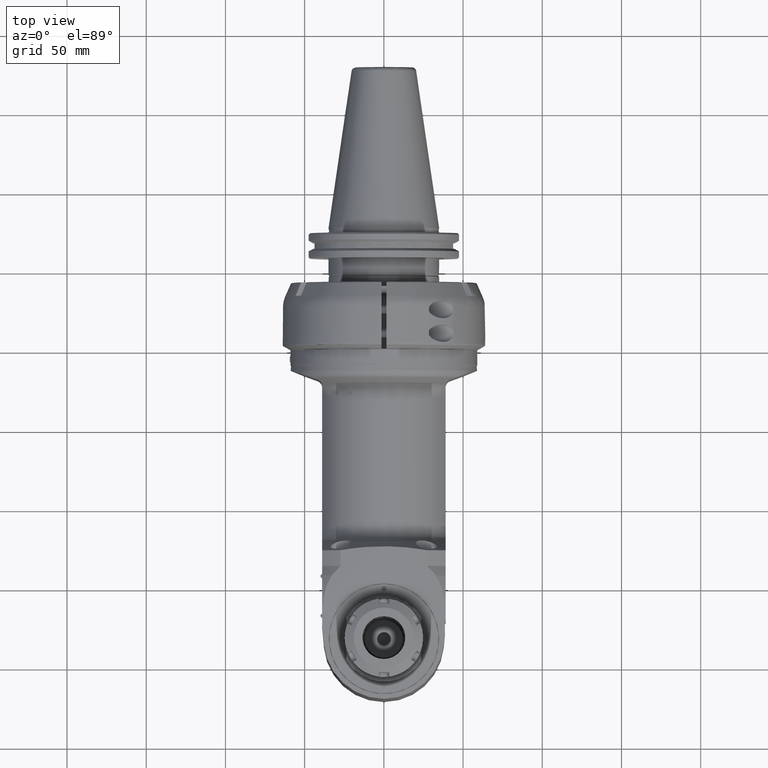
[diagram: clean part render]
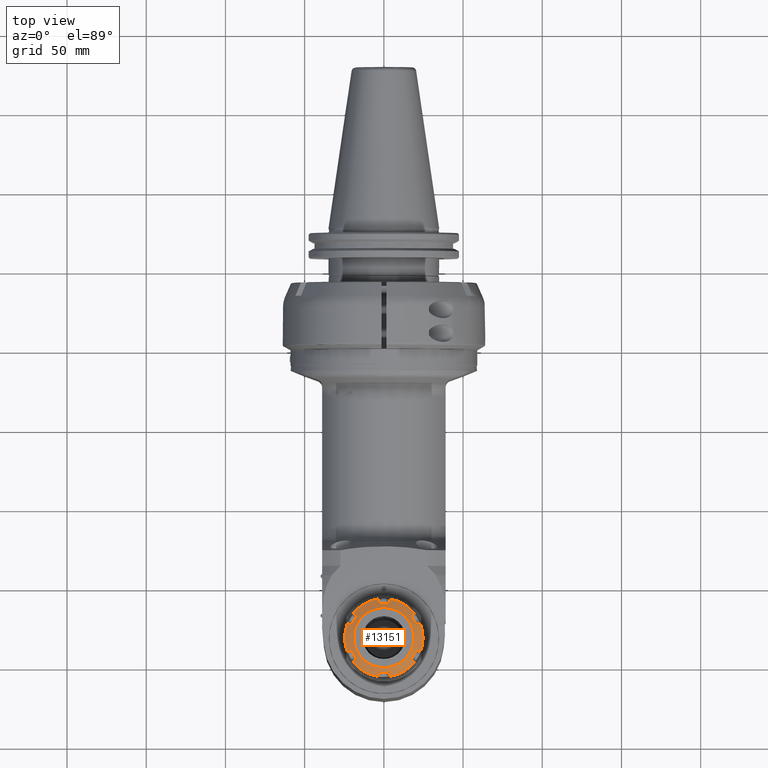
[diagram: same view with one face highlighted and labeled with its STEP entity id]
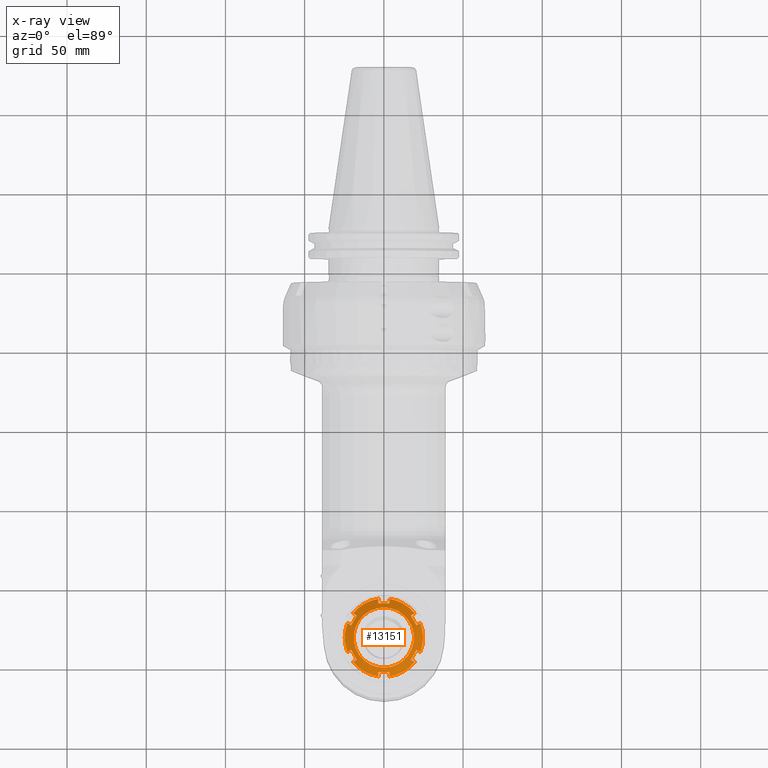
[diagram: x-ray of the same camera — body ghosted, the highlighted face saturated]
A machine part, top view. The second image highlights one B-rep face of the part: STEP entity #13151.
The next image is the same camera in x-ray: the body ghosted, the highlighted face saturated — about 0% of this face is hidden behind the body in this view.
In plain terms, the highlighted conical surface has half-angle 60 deg.
Its self-contained STEP definition (entity closure, byte-faithful):
#228=CONICAL_SURFACE('',#14515,21.875,1.0471975511966);
#384=B_SPLINE_CURVE_WITH_KNOTS('',3,(#37006,#37007,#37008,#37009,#37010,
#37011),.UNSPECIFIED.,.F.,.F.,(4,2,4),(1.75304230419575E-6,0.179968194076602,
0.354706484196522),.UNSPECIFIED.);
#385=B_SPLINE_CURVE_WITH_KNOTS('',3,(#37013,#37014,#37015,#37016,#37017,
#37018),.UNSPECIFIED.,.F.,.F.,(4,2,4),(6.56432378893916E-6,0.158648987542405,
0.312349172430563),.UNSPECIFIED.);
#386=B_SPLINE_CURVE_WITH_KNOTS('',3,(#37030,#37031,#37032,#37033,#37034,
#37035),.UNSPECIFIED.,.F.,.F.,(4,2,4),(9.99999986067701E-7,0.1535487467006,
0.311883061140396),.UNSPECIFIED.);
#387=B_SPLINE_CURVE_WITH_KNOTS('',3,(#37037,#37038,#37039,#37040,#37041,
#37042,#37043,#37044),.UNSPECIFIED.,.F.,.F.,(4,2,2,4),(3.04413971080063E-6,
0.177048071462342,0.35329198125469,0.710275238795647),.UNSPECIFIED.);
#388=B_SPLINE_CURVE_WITH_KNOTS('',3,(#37046,#37047,#37048,#37049,#37050,
#37051),.UNSPECIFIED.,.F.,.F.,(4,2,4),(1.32933218869019E-6,0.158570358987506,
0.312342940626772),.UNSPECIFIED.);
#389=B_SPLINE_CURVE_WITH_KNOTS('',3,(#37063,#37064,#37065,#37066,#37067,
#37068),.UNSPECIFIED.,.F.,.F.,(4,2,4),(9.99999986206479E-7,0.153549233262958,
0.311884353579541),.UNSPECIFIED.);
#390=B_SPLINE_CURVE_WITH_KNOTS('',3,(#37070,#37071,#37072,#37073,#37074,
#37075,#37076,#37077,#37078,#37079),.UNSPECIFIED.,.F.,.F.,(4,2,2,2,4),(3.43894632933887E-6,
0.179256796815054,0.356213165144681,0.532342527782328,0.709279107887618),
 .UNSPECIFIED.);
#391=B_SPLINE_CURVE_WITH_KNOTS('',3,(#37081,#37082,#37083,#37084,#37085,
#37086),.UNSPECIFIED.,.F.,.F.,(4,2,4),(2.07933949775423E-6,0.158569247520242,
0.312342359699281),.UNSPECIFIED.);
#392=B_SPLINE_CURVE_WITH_KNOTS('',3,(#37098,#37099,#37100,#37101,#37102,
#37103),.UNSPECIFIED.,.F.,.F.,(4,2,4),(9.99999984601344E-7,0.153549312796786,
0.31187905688944),.UNSPECIFIED.);
#393=B_SPLINE_CURVE_WITH_KNOTS('',3,(#37105,#37106,#37107,#37108,#37109,
#37110),.UNSPECIFIED.,.F.,.F.,(4,2,4),(4.04179745230355E-6,0.174719437591081,
0.354667402329426),.UNSPECIFIED.);
#394=B_SPLINE_CURVE_WITH_KNOTS('',3,(#37112,#37113,#37114,#37115,#37116,
#37117),.UNSPECIFIED.,.F.,.F.,(4,2,4),(4.05758477388635E-6,0.179970500306999,
0.354708815402636),.UNSPECIFIED.);
#395=B_SPLINE_CURVE_WITH_KNOTS('',3,(#37119,#37120,#37121,#37122,#37123,
#37124),.UNSPECIFIED.,.F.,.F.,(4,2,4),(6.56392163599752E-6,0.158569666217397,
0.312342838283375),.UNSPECIFIED.);
#396=B_SPLINE_CURVE_WITH_KNOTS('',3,(#37136,#37137,#37138,#37139,#37140,
#37141),.UNSPECIFIED.,.F.,.F.,(4,2,4),(9.99999986345257E-7,0.153548746700749,
0.311883061140589),.UNSPECIFIED.);
#397=B_SPLINE_CURVE_WITH_KNOTS('',3,(#37143,#37144,#37145,#37146,#37147,
#37148,#37149,#37150),.UNSPECIFIED.,.F.,.F.,(4,2,2,4),(3.04413971070964E-6,
0.177048071462304,0.353291981254645,0.710275238795632),.UNSPECIFIED.);
#398=B_SPLINE_CURVE_WITH_KNOTS('',3,(#37152,#37153,#37154,#37155,#37156,
#37157),.UNSPECIFIED.,.F.,.F.,(4,2,4),(1.32933218994347E-6,0.158569850560989,
0.31234294062439),.UNSPECIFIED.);
#399=B_SPLINE_CURVE_WITH_KNOTS('',3,(#37169,#37170,#37171,#37172,#37173,
#37174),.UNSPECIFIED.,.F.,.F.,(4,2,4),(9.99999985170407E-7,0.153549233262018,
0.311884353580751),.UNSPECIFIED.);
#400=B_SPLINE_CURVE_WITH_KNOTS('',3,(#37176,#37177,#37178,#37179,#37180,
#37181,#37182,#37183,#37184,#37185),.UNSPECIFIED.,.F.,.F.,(4,2,2,2,4),(3.43894633169504E-6,
0.179256796611397,0.356213164740627,0.532342526631423,0.709279115439129),
 .UNSPECIFIED.);
#401=B_SPLINE_CURVE_WITH_KNOTS('',3,(#37187,#37188,#37189,#37190,#37191,
#37192),.UNSPECIFIED.,.F.,.F.,(4,2,4),(2.0750582812829E-6,0.158542178985538,
0.312340212838862),.UNSPECIFIED.);
#402=B_SPLINE_CURVE_WITH_KNOTS('',3,(#37204,#37205,#37206,#37207,#37208,
#37209),.UNSPECIFIED.,.F.,.F.,(4,2,4),(9.9999998651179E-7,0.153548805156028,
0.311879056910371),.UNSPECIFIED.);
#403=B_SPLINE_CURVE_WITH_KNOTS('',3,(#37210,#37211,#37212,#37213,#37214,
#37215),.UNSPECIFIED.,.F.,.F.,(4,2,4),(4.04179743802855E-6,0.174719437591132,
0.354667406468795),.UNSPECIFIED.);
#1274=CIRCLE('',#14514,19.);
#1275=CIRCLE('',#14516,24.75);
#1276=CIRCLE('',#14517,24.75);
#1277=CIRCLE('',#14518,24.75);
#1278=CIRCLE('',#14519,24.75);
#1279=CIRCLE('',#14520,24.75);
#1280=CIRCLE('',#14521,24.75);
#1895=FACE_OUTER_BOUND('',#2666,.T.);
#2666=EDGE_LOOP('',(#11492,#11493,#11494,#11495,#11496,#11497,#11498,#11499,
#11500,#11501,#11502,#11503,#11504,#11505,#11506,#11507,#11508,#11509,#11510,
#11511,#11512,#11513,#11514,#11515,#11516,#11517,#11518,#11519,#11520,#11521,
#11522,#11523,#11524,#11525,#11526,#11527,#11528,#11529,#11530,#11531,#11532));
#2920=(
BOUNDED_CURVE()
B_SPLINE_CURVE(2,(#37020,#37021,#37022),.UNSPECIFIED.,.F.,.F.)
B_SPLINE_CURVE_WITH_KNOTS((3,3),(1.82066009604874,1.82654082051238),
 .UNSPECIFIED.)
CURVE()
GEOMETRIC_REPRESENTATION_ITEM()
RATIONAL_B_SPLINE_CURVE((1.10513378565991,1.10514190562322,1.105148981194))
REPRESENTATION_ITEM('')
);
#2921=(
BOUNDED_CURVE()
B_SPLINE_CURVE(2,(#37026,#37027,#37028),.UNSPECIFIED.,.F.,.F.)
B_SPLINE_CURVE_WITH_KNOTS((3,3),(1.90622250387371,1.91210328641764),
 .UNSPECIFIED.)
CURVE()
GEOMETRIC_REPRESENTATION_ITEM()
RATIONAL_B_SPLINE_CURVE((1.10514898079948,1.10514190515945,1.10513378510626))
REPRESENTATION_ITEM('')
);
#2922=(
BOUNDED_CURVE()
B_SPLINE_CURVE(2,(#37053,#37054,#37055),.UNSPECIFIED.,.F.,.F.)
B_SPLINE_CURVE_WITH_KNOTS((3,3),(1.82066003554749,1.82654081595317),
 .UNSPECIFIED.)
CURVE()
GEOMETRIC_REPRESENTATION_ITEM()
RATIONAL_B_SPLINE_CURVE((1.10513378467657,1.10514190472574,1.1051489803625))
REPRESENTATION_ITEM('')
);
#2923=(
BOUNDED_CURVE()
B_SPLINE_CURVE(2,(#37059,#37060,#37061),.UNSPECIFIED.,.F.,.F.)
B_SPLINE_CURVE_WITH_KNOTS((3,3),(1.90622249082827,1.91210327336149),
 .UNSPECIFIED.)
CURVE()
GEOMETRIC_REPRESENTATION_ITEM()
RATIONAL_B_SPLINE_CURVE((1.10514898025347,1.10514190461433,1.10513378456202))
REPRESENTATION_ITEM('')
);
#2924=(
BOUNDED_CURVE()
B_SPLINE_CURVE(2,(#37088,#37089,#37090),.UNSPECIFIED.,.F.,.F.)
B_SPLINE_CURVE_WITH_KNOTS((3,3),(1.82066003857852,1.82654081899518),
 .UNSPECIFIED.)
CURVE()
GEOMETRIC_REPRESENTATION_ITEM()
RATIONAL_B_SPLINE_CURVE((1.10513378522962,1.10514190527968,1.10514898091734))
REPRESENTATION_ITEM('')
);
#2925=(
BOUNDED_CURVE()
B_SPLINE_CURVE(2,(#37094,#37095,#37096),.UNSPECIFIED.,.F.,.F.)
B_SPLINE_CURVE_WITH_KNOTS((3,3),(1.90622251223776,1.91210329478919),
 .UNSPECIFIED.)
CURVE()
GEOMETRIC_REPRESENTATION_ITEM()
RATIONAL_B_SPLINE_CURVE((1.10514898114973,1.10514190550913,1.10513378545537))
REPRESENTATION_ITEM('')
);
#2926=(
BOUNDED_CURVE()
B_SPLINE_CURVE(2,(#37126,#37127,#37128),.UNSPECIFIED.,.F.,.F.)
B_SPLINE_CURVE_WITH_KNOTS((3,3),(-1.91210329372041,-1.90622251329742),
 .UNSPECIFIED.)
CURVE()
GEOMETRIC_REPRESENTATION_ITEM()
RATIONAL_B_SPLINE_CURVE((1.10513378550538,1.10514190555589,1.105148981194))
REPRESENTATION_ITEM('')
);
#2927=(
BOUNDED_CURVE()
B_SPLINE_CURVE(2,(#37132,#37133,#37134),.UNSPECIFIED.,.F.,.F.)
B_SPLINE_CURVE_WITH_KNOTS((3,3),(1.90622250387371,1.91210328641764),
 .UNSPECIFIED.)
CURVE()
GEOMETRIC_REPRESENTATION_ITEM()
RATIONAL_B_SPLINE_CURVE((1.10514898079948,1.10514190515945,1.10513378510626))
REPRESENTATION_ITEM('')
);
#2928=(
BOUNDED_CURVE()
B_SPLINE_CURVE(2,(#37159,#37160,#37161),.UNSPECIFIED.,.F.,.F.)
B_SPLINE_CURVE_WITH_KNOTS((3,3),(1.82066003554749,1.82654081595317),
 .UNSPECIFIED.)
CURVE()
GEOMETRIC_REPRESENTATION_ITEM()
RATIONAL_B_SPLINE_CURVE((1.10513378467657,1.10514190472574,1.1051489803625))
REPRESENTATION_ITEM('')
);
#2929=(
BOUNDED_CURVE()
B_SPLINE_CURVE(2,(#37165,#37166,#37167),.UNSPECIFIED.,.F.,.F.)
B_SPLINE_CURVE_WITH_KNOTS((3,3),(1.90622249082827,1.91210327336149),
 .UNSPECIFIED.)
CURVE()
GEOMETRIC_REPRESENTATION_ITEM()
RATIONAL_B_SPLINE_CURVE((1.10514898025347,1.10514190461433,1.10513378456202))
REPRESENTATION_ITEM('')
);
#2930=(
BOUNDED_CURVE()
B_SPLINE_CURVE(2,(#37194,#37195,#37196),.UNSPECIFIED.,.F.,.F.)
B_SPLINE_CURVE_WITH_KNOTS((3,3),(1.82066001950797,1.82654081899518),
 .UNSPECIFIED.)
CURVE()
GEOMETRIC_REPRESENTATION_ITEM()
RATIONAL_B_SPLINE_CURVE((1.10513378517696,1.10514190525674,1.10514898091734))
REPRESENTATION_ITEM('')
);
#2931=(
BOUNDED_CURVE()
B_SPLINE_CURVE(2,(#37200,#37201,#37202),.UNSPECIFIED.,.F.,.F.)
B_SPLINE_CURVE_WITH_KNOTS((3,3),(1.90622251223776,1.91210329478918),
 .UNSPECIFIED.)
CURVE()
GEOMETRIC_REPRESENTATION_ITEM()
RATIONAL_B_SPLINE_CURVE((1.10514898114973,1.10514190550913,1.10513378545537))
REPRESENTATION_ITEM('')
);
#3808=LINE('',#37216,#4755);
#4755=VECTOR('',#17716,21.875);
#6041=VERTEX_POINT('',#37001);
#6042=VERTEX_POINT('',#37004);
#6043=VERTEX_POINT('',#37005);
#6044=VERTEX_POINT('',#37012);
#6045=VERTEX_POINT('',#37019);
#6046=VERTEX_POINT('',#37023);
#6047=VERTEX_POINT('',#37025);
#6048=VERTEX_POINT('',#37029);
#6049=VERTEX_POINT('',#37036);
#6050=VERTEX_POINT('',#37045);
#6051=VERTEX_POINT('',#37052);
#6052=VERTEX_POINT('',#37056);
#6053=VERTEX_POINT('',#37058);
#6054=VERTEX_POINT('',#37062);
#6055=VERTEX_POINT('',#37069);
#6056=VERTEX_POINT('',#37080);
#6057=VERTEX_POINT('',#37087);
#6058=VERTEX_POINT('',#37091);
#6059=VERTEX_POINT('',#37093);
#6060=VERTEX_POINT('',#37097);
#6061=VERTEX_POINT('',#37104);
#6062=VERTEX_POINT('',#37111);
#6063=VERTEX_POINT('',#37118);
#6064=VERTEX_POINT('',#37125);
#6065=VERTEX_POINT('',#37129);
#6066=VERTEX_POINT('',#37131);
#6067=VERTEX_POINT('',#37135);
#6068=VERTEX_POINT('',#37142);
#6069=VERTEX_POINT('',#37151);
#6070=VERTEX_POINT('',#37158);
#6071=VERTEX_POINT('',#37162);
#6072=VERTEX_POINT('',#37164);
#6073=VERTEX_POINT('',#37168);
#6074=VERTEX_POINT('',#37175);
#6075=VERTEX_POINT('',#37186);
#6076=VERTEX_POINT('',#37193);
#6077=VERTEX_POINT('',#37197);
#6078=VERTEX_POINT('',#37199);
#6079=VERTEX_POINT('',#37203);
#7877=EDGE_CURVE('',#6041,#6041,#1274,.T.);
#7878=EDGE_CURVE('',#6042,#6043,#384,.T.);
#7879=EDGE_CURVE('',#6043,#6044,#385,.T.);
#7880=EDGE_CURVE('',#6044,#6045,#2920,.T.);
#7881=EDGE_CURVE('',#6045,#6046,#1275,.T.);
#7882=EDGE_CURVE('',#6046,#6047,#2921,.T.);
#7883=EDGE_CURVE('',#6047,#6048,#386,.T.);
#7884=EDGE_CURVE('',#6048,#6049,#387,.T.);
#7885=EDGE_CURVE('',#6049,#6050,#388,.T.);
#7886=EDGE_CURVE('',#6050,#6051,#2922,.T.);
#7887=EDGE_CURVE('',#6051,#6052,#1276,.T.);
#7888=EDGE_CURVE('',#6052,#6053,#2923,.T.);
#7889=EDGE_CURVE('',#6053,#6054,#389,.T.);
#7890=EDGE_CURVE('',#6054,#6055,#390,.T.);
#7891=EDGE_CURVE('',#6055,#6056,#391,.T.);
#7892=EDGE_CURVE('',#6056,#6057,#2924,.T.);
#7893=EDGE_CURVE('',#6057,#6058,#1277,.T.);
#7894=EDGE_CURVE('',#6058,#6059,#2925,.T.);
#7895=EDGE_CURVE('',#6059,#6060,#392,.T.);
#7896=EDGE_CURVE('',#6060,#6061,#393,.T.);
#7897=EDGE_CURVE('',#6061,#6062,#394,.T.);
#7898=EDGE_CURVE('',#6062,#6063,#395,.T.);
#7899=EDGE_CURVE('',#6063,#6064,#2926,.T.);
#7900=EDGE_CURVE('',#6065,#6064,#1278,.T.);
#7901=EDGE_CURVE('',#6065,#6066,#2927,.T.);
#7902=EDGE_CURVE('',#6066,#6067,#396,.T.);
#7903=EDGE_CURVE('',#6067,#6068,#397,.T.);
#7904=EDGE_CURVE('',#6068,#6069,#398,.T.);
#7905=EDGE_CURVE('',#6069,#6070,#2928,.T.);
#7906=EDGE_CURVE('',#6071,#6070,#1279,.T.);
#7907=EDGE_CURVE('',#6071,#6072,#2929,.T.);
#7908=EDGE_CURVE('',#6072,#6073,#399,.T.);
#7909=EDGE_CURVE('',#6073,#6074,#400,.T.);
#7910=EDGE_CURVE('',#6074,#6075,#401,.T.);
#7911=EDGE_CURVE('',#6075,#6076,#2930,.T.);
#7912=EDGE_CURVE('',#6077,#6076,#1280,.T.);
#7913=EDGE_CURVE('',#6077,#6078,#2931,.T.);
#7914=EDGE_CURVE('',#6078,#6079,#402,.T.);
#7915=EDGE_CURVE('',#6079,#6042,#403,.T.);
#7916=EDGE_CURVE('',#6042,#6041,#3808,.T.);
#11492=ORIENTED_EDGE('',*,*,#7878,.T.);
#11493=ORIENTED_EDGE('',*,*,#7879,.T.);
#11494=ORIENTED_EDGE('',*,*,#7880,.T.);
#11495=ORIENTED_EDGE('',*,*,#7881,.T.);
#11496=ORIENTED_EDGE('',*,*,#7882,.T.);
#11497=ORIENTED_EDGE('',*,*,#7883,.T.);
#11498=ORIENTED_EDGE('',*,*,#7884,.T.);
#11499=ORIENTED_EDGE('',*,*,#7885,.T.);
#11500=ORIENTED_EDGE('',*,*,#7886,.T.);
#11501=ORIENTED_EDGE('',*,*,#7887,.T.);
#11502=ORIENTED_EDGE('',*,*,#7888,.T.);
#11503=ORIENTED_EDGE('',*,*,#7889,.T.);
#11504=ORIENTED_EDGE('',*,*,#7890,.T.);
#11505=ORIENTED_EDGE('',*,*,#7891,.T.);
#11506=ORIENTED_EDGE('',*,*,#7892,.T.);
#11507=ORIENTED_EDGE('',*,*,#7893,.T.);
#11508=ORIENTED_EDGE('',*,*,#7894,.T.);
#11509=ORIENTED_EDGE('',*,*,#7895,.T.);
#11510=ORIENTED_EDGE('',*,*,#7896,.T.);
#11511=ORIENTED_EDGE('',*,*,#7897,.T.);
#11512=ORIENTED_EDGE('',*,*,#7898,.T.);
#11513=ORIENTED_EDGE('',*,*,#7899,.T.);
#11514=ORIENTED_EDGE('',*,*,#7900,.F.);
#11515=ORIENTED_EDGE('',*,*,#7901,.T.);
#11516=ORIENTED_EDGE('',*,*,#7902,.T.);
#11517=ORIENTED_EDGE('',*,*,#7903,.T.);
#11518=ORIENTED_EDGE('',*,*,#7904,.T.);
#11519=ORIENTED_EDGE('',*,*,#7905,.T.);
#11520=ORIENTED_EDGE('',*,*,#7906,.F.);
#11521=ORIENTED_EDGE('',*,*,#7907,.T.);
#11522=ORIENTED_EDGE('',*,*,#7908,.T.);
#11523=ORIENTED_EDGE('',*,*,#7909,.T.);
#11524=ORIENTED_EDGE('',*,*,#7910,.T.);
#11525=ORIENTED_EDGE('',*,*,#7911,.T.);
#11526=ORIENTED_EDGE('',*,*,#7912,.F.);
#11527=ORIENTED_EDGE('',*,*,#7913,.T.);
#11528=ORIENTED_EDGE('',*,*,#7914,.T.);
#11529=ORIENTED_EDGE('',*,*,#7915,.T.);
#11530=ORIENTED_EDGE('',*,*,#7916,.T.);
#11531=ORIENTED_EDGE('',*,*,#7877,.F.);
#11532=ORIENTED_EDGE('',*,*,#7916,.F.);
#13151=ADVANCED_FACE('',(#1895),#228,.T.);
#14514=AXIS2_PLACEMENT_3D('',#37002,#17700,#17701);
#14515=AXIS2_PLACEMENT_3D('',#37003,#17702,#17703);
#14516=AXIS2_PLACEMENT_3D('',#37024,#17704,#17705);
#14517=AXIS2_PLACEMENT_3D('',#37057,#17706,#17707);
#14518=AXIS2_PLACEMENT_3D('',#37092,#17708,#17709);
#14519=AXIS2_PLACEMENT_3D('',#37130,#17710,#17711);
#14520=AXIS2_PLACEMENT_3D('',#37163,#17712,#17713);
#14521=AXIS2_PLACEMENT_3D('',#37198,#17714,#17715);
#17700=DIRECTION('center_axis',(-1.,0.,0.));
#17701=DIRECTION('ref_axis',(0.,1.,0.));
#17702=DIRECTION('center_axis',(1.,0.,0.));
#17703=DIRECTION('ref_axis',(0.,-1.,0.));
#17704=DIRECTION('center_axis',(-1.,0.,0.));
#17705=DIRECTION('ref_axis',(0.,0.989529626064201,-0.1443298969072));
#17706=DIRECTION('center_axis',(-1.,0.,0.));
#17707=DIRECTION('ref_axis',(0.,0.369771455784902,-0.929122742422504));
#17708=DIRECTION('center_axis',(-1.,0.,0.));
#17709=DIRECTION('ref_axis',(0.,-0.619758170279316,-0.784792845515321));
#17710=DIRECTION('center_axis',(1.,0.,0.));
#17711=DIRECTION('ref_axis',(0.,-0.619758170279316,0.784792845515321));
#17712=DIRECTION('center_axis',(1.,0.,0.));
#17713=DIRECTION('ref_axis',(0.,0.369771455784902,0.929122742422504));
#17714=DIRECTION('center_axis',(1.,0.,0.));
#17715=DIRECTION('ref_axis',(0.,0.989529626064201,0.1443298969072));
#17716=DIRECTION('',(-0.5,-0.866025403784439,-1.06057523872491E-16));
#37001=CARTESIAN_POINT('',(0.,19.,0.));
#37002=CARTESIAN_POINT('Origin',(0.,0.,0.));
#37003=CARTESIAN_POINT('Origin',(1.65988202392,0.,0.));
#37004=CARTESIAN_POINT('',(1.58770651080313,21.7499808090281,2.83625134579225E-10));
#37005=CARTESIAN_POINT('',(1.75113469320418,21.7467883487005,-3.54015205252926));
#37006=CARTESIAN_POINT('Ctrl Pts',(1.58769543090127,21.7499691532663,1.22659479795395E-9));
#37007=CARTESIAN_POINT('Ctrl Pts',(1.58764563619319,21.7498829063357,-0.599888107340007));
#37008=CARTESIAN_POINT('Ctrl Pts',(1.60183057676757,21.7496297887395,-1.19875346719087));
#37009=CARTESIAN_POINT('Ctrl Pts',(1.65741180160951,21.7485986930342,-2.37973510898757));
#37010=CARTESIAN_POINT('Ctrl Pts',(1.69792962328061,21.7478323110994,-2.96019549976064));
#37011=CARTESIAN_POINT('Ctrl Pts',(1.75113469425703,21.7467883497596,-3.54015205243458));
#37012=CARTESIAN_POINT('',(3.298775579242,24.45940554186,-3.535791839759));
#37013=CARTESIAN_POINT('Ctrl Pts',(1.75113469349672,21.7467883485325,-3.54015205177643));
#37014=CARTESIAN_POINT('Ctrl Pts',(2.0128915536786,22.2062689703245,-3.53931428133247));
#37015=CARTESIAN_POINT('Ctrl Pts',(2.27493920823376,22.6658663325641,-3.53853969922931));
#37016=CARTESIAN_POINT('Ctrl Pts',(2.79082350240744,23.5700194850364,-3.53710591793155));
#37017=CARTESIAN_POINT('Ctrl Pts',(3.04502085269554,24.0152268375275,-3.53644286094166));
#37018=CARTESIAN_POINT('Ctrl Pts',(3.29877557924291,24.4594055418595,-3.53579183975964));
#37019=CARTESIAN_POINT('',(3.31976404784,24.49085824509,-3.572164948454));
#37020=CARTESIAN_POINT('Ctrl Pts',(3.29877557924208,24.4594055418579,-3.53579183976081));
#37021=CARTESIAN_POINT('Ctrl Pts',(3.30925631885344,24.4751203354588,-3.55396502797839));
#37022=CARTESIAN_POINT('Ctrl Pts',(3.31976404784004,24.4908582450884,-3.57216494845534));
#37023=CARTESIAN_POINT('',(3.31976404784,15.33901471441,-19.4236229265));
#37024=CARTESIAN_POINT('Origin',(3.31976404784,0.,0.));
#37025=CARTESIAN_POINT('',(3.298775372188,15.2917878605,-19.41457055148));
#37026=CARTESIAN_POINT('Ctrl Pts',(3.31976404783744,15.3390147144112,-19.4236229264996));
#37027=CARTESIAN_POINT('Ctrl Pts',(3.30925621505748,15.3153839326984,-19.4190934124552));
#37028=CARTESIAN_POINT('Ctrl Pts',(3.29877537218575,15.2917878605009,-19.4145705514804));
#37029=CARTESIAN_POINT('',(1.75111485146462,13.9392386496181,-17.0631647559943));
#37030=CARTESIAN_POINT('Ctrl Pts',(3.29877537218577,15.2917878604986,-19.4145705514823));
#37031=CARTESIAN_POINT('Ctrl Pts',(3.04488535655227,15.0701440267901,-19.0293698789987));
#37032=CARTESIAN_POINT('Ctrl Pts',(2.79055676481401,14.848000086344,-18.6432779438511));
#37033=CARTESIAN_POINT('Ctrl Pts',(2.27467866280359,14.3971707166973,-17.8595499957883));
#37034=CARTESIAN_POINT('Ctrl Pts',(2.01274574498971,14.1681432359203,-17.461313848641));
#37035=CARTESIAN_POINT('Ctrl Pts',(1.75111485173556,13.9392386489364,-17.0631647562082));
#37036=CARTESIAN_POINT('',(1.75110829684773,7.80750911436222,-20.6033071787981));
#37037=CARTESIAN_POINT('Ctrl Pts',(1.75111485243972,13.9392386500326,-17.0631647568876));
#37038=CARTESIAN_POINT('Ctrl Pts',(1.69720248769026,13.4308218503752,-17.3579238361497));
#37039=CARTESIAN_POINT('Ctrl Pts',(1.656340419494,12.921882687876,-17.6526918981887));
#37040=CARTESIAN_POINT('Ctrl Pts',(1.60172778062865,11.9036497698673,-18.2418283575809));
#37041=CARTESIAN_POINT('Ctrl Pts',(1.58796574772794,11.3964368795454,-18.5350317728825));
#37042=CARTESIAN_POINT('Ctrl Pts',(1.5872769199104,9.85823238622482,-19.4231530288187));
#37043=CARTESIAN_POINT('Ctrl Pts',(1.64229312539423,8.83554254091685,-20.0121876862492));
#37044=CARTESIAN_POINT('Ctrl Pts',(1.75110829577724,7.80750911374039,-20.6033071779137));
#37045=CARTESIAN_POINT('',(3.298775379778,9.167617365192,-22.95036204866));
#37046=CARTESIAN_POINT('Ctrl Pts',(1.75110829655028,7.80750911378488,-20.6033071793287));
#37047=CARTESIAN_POINT('Ctrl Pts',(2.01274320543534,8.03786753093247,-21.0006250378409));
#37048=CARTESIAN_POINT('Ctrl Pts',(2.27467994220879,8.2682396890702,-21.3980925535575));
#37049=CARTESIAN_POINT('Ctrl Pts',(2.79056016242295,8.72155510383358,-22.1803894483922));
#37050=CARTESIAN_POINT('Ctrl Pts',(3.04488847470348,8.94484831796408,-22.5658172832633));
#37051=CARTESIAN_POINT('Ctrl Pts',(3.29877537977957,9.16761736519332,-22.9503620486582));
#37052=CARTESIAN_POINT('',(3.31976404784,9.151843530675,-22.99578787496));
#37053=CARTESIAN_POINT('Ctrl Pts',(3.29877537977935,9.16761736519057,-22.9503620486589));
#37054=CARTESIAN_POINT('Ctrl Pts',(3.30925621886579,9.15973624444328,-22.9730582688927));
#37055=CARTESIAN_POINT('Ctrl Pts',(3.31976404784093,9.15184353067409,-22.9957878749593));
#37056=CARTESIAN_POINT('',(3.31976404784,-9.151843530675,-22.99578787496));
#37057=CARTESIAN_POINT('Origin',(3.31976404784,0.,0.));
#37058=CARTESIAN_POINT('',(3.298775372188,-9.1676173709,-22.95036203222));
#37059=CARTESIAN_POINT('Ctrl Pts',(3.3197640478408,-9.15184353067365,-22.9957878749592));
#37060=CARTESIAN_POINT('Ctrl Pts',(3.30925621506017,-9.15973624730125,-22.973058260661));
#37061=CARTESIAN_POINT('Ctrl Pts',(3.29877537218778,-9.16761737089854,-22.9503620322196));
#37062=CARTESIAN_POINT('',(1.7511084440951,-7.80750918201604,-20.6033074259321));
#37063=CARTESIAN_POINT('Ctrl Pts',(3.29877537218825,-9.1676173708997,-22.95036203222));
#37064=CARTESIAN_POINT('Ctrl Pts',(3.04488374510936,-8.94484430589547,-22.5658100646489));
#37065=CARTESIAN_POINT('Ctrl Pts',(2.79055848908832,-8.72155378112357,-22.1803868567686));
#37066=CARTESIAN_POINT('Ctrl Pts',(2.27467659559722,-8.26823682171504,-21.3980874464692));
#37067=CARTESIAN_POINT('Ctrl Pts',(2.01274150363294,-8.0378660281801,-21.0006224552404));
#37068=CARTESIAN_POINT('Ctrl Pts',(1.75110844380917,-7.80750918146105,-20.6033074264422));
#37069=CARTESIAN_POINT('',(1.75111488459535,-13.9392386272905,-17.0631648483466));
#37070=CARTESIAN_POINT('Ctrl Pts',(1.75110844306605,-7.80750918141828,-20.603307425082));
#37071=CARTESIAN_POINT('Ctrl Pts',(1.69651026706913,-8.32332844995694,-20.3067115916266));
#37072=CARTESIAN_POINT('Ctrl Pts',(1.65532938963229,-8.83897943112652,-20.0099275359753));
#37073=CARTESIAN_POINT('Ctrl Pts',(1.60095848409916,-9.86680518165135,-19.4178313586413));
#37074=CARTESIAN_POINT('Ctrl Pts',(1.58751097432558,-10.377112335298,-19.1235641737093));
#37075=CARTESIAN_POINT('Ctrl Pts',(1.58796374802819,-11.3963403581659,-18.5350873541087));
#37076=CARTESIAN_POINT('Ctrl Pts',(1.60172450270162,-11.9035622714554,-18.2418789658401));
#37077=CARTESIAN_POINT('Ctrl Pts',(1.6563362346958,-12.9218297063336,-17.6527227344515));
#37078=CARTESIAN_POINT('Ctrl Pts',(1.69719974364722,-13.4307952254996,-17.3579394468258));
#37079=CARTESIAN_POINT('Ctrl Pts',(1.75111488558542,-13.9392386277114,-17.0631648492536));
#37080=CARTESIAN_POINT('',(3.298775379778,-15.29178787759,-19.41457055476));
#37081=CARTESIAN_POINT('Ctrl Pts',(1.75111488487045,-13.9392386265984,-17.0631648485638));
#37082=CARTESIAN_POINT('Ctrl Pts',(2.01274756535742,-14.1681448248125,-17.4613166216224));
#37083=CARTESIAN_POINT('Ctrl Pts',(2.27468206590428,-14.3971737552518,-17.8595551183501));
#37084=CARTESIAN_POINT('Ctrl Pts',(2.79056174272876,-14.8480045572952,-18.6432854055253));
#37085=CARTESIAN_POINT('Ctrl Pts',(3.04488679165131,-15.070145396191,-19.0293719644691));
#37086=CARTESIAN_POINT('Ctrl Pts',(3.29877537977797,-15.2917878775881,-19.4145705547611));
#37087=CARTESIAN_POINT('',(3.31976404784,-15.33901471441,-19.4236229265));
#37088=CARTESIAN_POINT('Ctrl Pts',(3.29877537977819,-15.2917878775899,-19.4145705547602));
#37089=CARTESIAN_POINT('Ctrl Pts',(3.30925621886413,-15.3153839412548,-19.4190934140995));
#37090=CARTESIAN_POINT('Ctrl Pts',(3.31976404783876,-15.3390147144099,-19.4236229265036));
#37091=CARTESIAN_POINT('',(3.31976404784,-24.49085824509,-3.572164948454));
#37092=CARTESIAN_POINT('Origin',(3.31976404784,0.,0.));
#37093=CARTESIAN_POINT('',(3.298775372188,-24.4594052314,-3.535791480735));
#37094=CARTESIAN_POINT('Ctrl Pts',(3.3197640478413,-24.4908582450911,-3.57216494845231));
#37095=CARTESIAN_POINT('Ctrl Pts',(3.30925621506068,-24.4751201800044,-3.55396484819883));
#37096=CARTESIAN_POINT('Ctrl Pts',(3.29877537218828,-24.4594052314027,-3.5357914807325));
#37097=CARTESIAN_POINT('',(1.75113469863372,-21.746788311671,-3.54015233851477));
#37098=CARTESIAN_POINT('Ctrl Pts',(3.29877537218715,-24.4594052314005,-3.53579148073401));
#37099=CARTESIAN_POINT('Ctrl Pts',(3.04488361358561,-24.0149866956856,-3.53644263086114));
#37100=CARTESIAN_POINT('Ctrl Pts',(2.79055822500676,-23.5695549117715,-3.53710629415057));
#37101=CARTESIAN_POINT('Ctrl Pts',(2.2746850917631,-22.6654206222001,-3.53854056754725));
#37102=CARTESIAN_POINT('Ctrl Pts',(2.01275889529786,-22.2060360580816,-3.53931500351097));
#37103=CARTESIAN_POINT('Ctrl Pts',(1.75113469892551,-21.7467883115034,-3.54015233776388));
#37104=CARTESIAN_POINT('',(1.58770308926218,-21.7499773944757,5.93952923497425E-10));
#37105=CARTESIAN_POINT('Ctrl Pts',(1.75113469968386,-21.7467883127273,-3.54015233842033));
#37106=CARTESIAN_POINT('Ctrl Pts',(1.69793023753188,-21.7478320084844,-2.96020402685715));
#37107=CARTESIAN_POINT('Ctrl Pts',(1.65741262937278,-21.7485980618913,-2.37975203875198));
#37108=CARTESIAN_POINT('Ctrl Pts',(1.60183072323443,-21.7496293543758,-1.1987701505901));
#37109=CARTESIAN_POINT('Ctrl Pts',(1.58764569663242,-21.7498830110455,-0.599896640084453));
#37110=CARTESIAN_POINT('Ctrl Pts',(1.58769624617435,-21.7499705653607,2.16727941149131E-9));
#37111=CARTESIAN_POINT('',(1.75113471343399,-21.7467883483002,3.5401522730565));
#37112=CARTESIAN_POINT('Ctrl Pts',(1.58769543090664,-21.7499691532756,-1.22659299384154E-9));
#37113=CARTESIAN_POINT('Ctrl Pts',(1.58764563619598,-21.7498829063406,0.599888086743056));
#37114=CARTESIAN_POINT('Ctrl Pts',(1.6018305757649,-21.7496297887561,1.19875343764407));
#37115=CARTESIAN_POINT('Ctrl Pts',(1.65741180392043,-21.7485986929877,2.37973516615967));
#37116=CARTESIAN_POINT('Ctrl Pts',(1.69792963279287,-21.7478323109186,2.96019563862747));
#37117=CARTESIAN_POINT('Ctrl Pts',(1.75113471448548,-21.7467883493579,3.54015227296194));
#37118=CARTESIAN_POINT('',(3.298775379778,-24.45940524278,3.535791493896));
#37119=CARTESIAN_POINT('Ctrl Pts',(1.75113471372616,-21.7467883481324,3.54015227230464));
#37120=CARTESIAN_POINT('Ctrl Pts',(2.01276070166319,-22.2060392294385,3.53931499308616));
#37121=CARTESIAN_POINT('Ctrl Pts',(2.274688485375,-22.6654265611106,3.53854063776165));
#37122=CARTESIAN_POINT('Ctrl Pts',(2.79056154522239,-23.5695607039185,3.53710643988291));
#37123=CARTESIAN_POINT('Ctrl Pts',(3.0448866932444,-24.0149920651347,3.53644276984759));
#37124=CARTESIAN_POINT('Ctrl Pts',(3.29877537977706,-24.4594052427805,3.53579149389645));
#37125=CARTESIAN_POINT('',(3.31976404784,-24.49085824509,3.572164948454));
#37126=CARTESIAN_POINT('Ctrl Pts',(3.29877537977698,-24.4594052427804,3.53579149389623));
#37127=CARTESIAN_POINT('Ctrl Pts',(3.30925621886417,-24.4751201857003,3.55396485479188));
#37128=CARTESIAN_POINT('Ctrl Pts',(3.31976404784005,-24.4908582450884,3.57216494845535));
#37129=CARTESIAN_POINT('',(3.31976404784,-15.33901471441,19.4236229265));
#37130=CARTESIAN_POINT('Origin',(3.31976404784,0.,0.));
#37131=CARTESIAN_POINT('',(3.298775372188,-15.2917878605,19.41457055148));
#37132=CARTESIAN_POINT('Ctrl Pts',(3.31976404783744,-15.3390147144112,19.4236229264996));
#37133=CARTESIAN_POINT('Ctrl Pts',(3.30925621505748,-15.3153839326984,19.4190934124552));
#37134=CARTESIAN_POINT('Ctrl Pts',(3.29877537218575,-15.2917878605009,19.4145705514804));
#37135=CARTESIAN_POINT('',(1.75111485146462,-13.9392386496181,17.0631647559943));
#37136=CARTESIAN_POINT('Ctrl Pts',(3.29877537218577,-15.2917878604986,19.4145705514823));
#37137=CARTESIAN_POINT('Ctrl Pts',(3.04488535655201,-15.0701440267899,19.0293698789983));
#37138=CARTESIAN_POINT('Ctrl Pts',(2.79055676481387,-14.8480000863439,18.6432779438508));
#37139=CARTESIAN_POINT('Ctrl Pts',(2.27467866280392,-14.3971707166976,17.8595499957888));
#37140=CARTESIAN_POINT('Ctrl Pts',(2.01274574498978,-14.1681432359204,17.4613138486411));
#37141=CARTESIAN_POINT('Ctrl Pts',(1.75111485173556,-13.9392386489364,17.0631647562082));
#37142=CARTESIAN_POINT('',(1.75110829684772,-7.80750911436222,20.6033071787981));
#37143=CARTESIAN_POINT('Ctrl Pts',(1.75111485243972,-13.9392386500326,17.0631647568876));
#37144=CARTESIAN_POINT('Ctrl Pts',(1.69720248769027,-13.4308218503753,17.3579238361497));
#37145=CARTESIAN_POINT('Ctrl Pts',(1.656340419494,-12.921882687876,17.6526918981886));
#37146=CARTESIAN_POINT('Ctrl Pts',(1.60172778062864,-11.9036497698672,18.241828357581));
#37147=CARTESIAN_POINT('Ctrl Pts',(1.58796574772794,-11.3964368795453,18.5350317728826));
#37148=CARTESIAN_POINT('Ctrl Pts',(1.5872769199104,-9.85823238622484,19.4231530288187));
#37149=CARTESIAN_POINT('Ctrl Pts',(1.64229312539423,-8.8355425409169,20.0121876862491));
#37150=CARTESIAN_POINT('Ctrl Pts',(1.75110829577724,-7.80750911374039,20.6033071779137));
#37151=CARTESIAN_POINT('',(3.298775379778,-9.167617365192,22.95036204866));
#37152=CARTESIAN_POINT('Ctrl Pts',(1.75110829655028,-7.80750911378488,20.6033071793287));
#37153=CARTESIAN_POINT('Ctrl Pts',(2.01274320543474,-8.03786753093194,21.00062503784));
#37154=CARTESIAN_POINT('Ctrl Pts',(2.27467994220735,-8.26823968906894,21.3980925535553));
#37155=CARTESIAN_POINT('Ctrl Pts',(2.79056181651407,-8.72155655732021,22.1803919567077));
#37156=CARTESIAN_POINT('Ctrl Pts',(3.04488682838327,-8.94484687342647,22.565814789697));
#37157=CARTESIAN_POINT('Ctrl Pts',(3.29877537977957,-9.16761736519332,22.9503620486582));
#37158=CARTESIAN_POINT('',(3.31976404784,-9.151843530675,22.99578787496));
#37159=CARTESIAN_POINT('Ctrl Pts',(3.29877537977935,-9.16761736519057,22.9503620486589));
#37160=CARTESIAN_POINT('Ctrl Pts',(3.30925621886579,-9.15973624444328,22.9730582688927));
#37161=CARTESIAN_POINT('Ctrl Pts',(3.31976404784093,-9.15184353067409,22.9957878749593));
#37162=CARTESIAN_POINT('',(3.31976404784,9.151843530675,22.99578787496));
#37163=CARTESIAN_POINT('Origin',(3.31976404784,0.,0.));
#37164=CARTESIAN_POINT('',(3.298775372188,9.1676173709,22.95036203222));
#37165=CARTESIAN_POINT('Ctrl Pts',(3.3197640478408,9.15184353067365,22.9957878749592));
#37166=CARTESIAN_POINT('Ctrl Pts',(3.30925621506017,9.15973624730125,22.973058260661));
#37167=CARTESIAN_POINT('Ctrl Pts',(3.29877537218778,9.16761737089854,22.9503620322196));
#37168=CARTESIAN_POINT('',(1.75110844409507,7.80750918201601,20.6033074259321));
#37169=CARTESIAN_POINT('Ctrl Pts',(3.29877537218826,9.1676173708997,22.95036203222));
#37170=CARTESIAN_POINT('Ctrl Pts',(3.04488374511092,8.94484430589683,22.5658100646513));
#37171=CARTESIAN_POINT('Ctrl Pts',(2.79055848908905,8.72155378112421,22.1803868567697));
#37172=CARTESIAN_POINT('Ctrl Pts',(2.27467659559132,8.26823682170985,21.3980874464602));
#37173=CARTESIAN_POINT('Ctrl Pts',(2.01274150363042,8.03786602817788,21.0006224552366));
#37174=CARTESIAN_POINT('Ctrl Pts',(1.75110844380914,7.80750918146102,20.6033074264421));
#37175=CARTESIAN_POINT('',(1.75111489150944,13.9392386924652,17.0631648105647));
#37176=CARTESIAN_POINT('Ctrl Pts',(1.75110844306602,7.80750918141825,20.6033074250819));
#37177=CARTESIAN_POINT('Ctrl Pts',(1.69651026713091,8.32332844937065,20.3067115919632));
#37178=CARTESIAN_POINT('Ctrl Pts',(1.65532938972604,8.83897942995609,20.0099275366495));
#37179=CARTESIAN_POINT('Ctrl Pts',(1.60095848419272,9.86680517931363,19.4178313599906));
#37180=CARTESIAN_POINT('Ctrl Pts',(1.58751097438739,10.377112332389,19.1235641753891));
#37181=CARTESIAN_POINT('Ctrl Pts',(1.5879637479642,11.396340352529,18.5350873573658));
#37182=CARTESIAN_POINT('Ctrl Pts',(1.60172450245973,11.903562263683,18.2418789703336));
#37183=CARTESIAN_POINT('Ctrl Pts',(1.65633623533541,12.9218297215359,17.6527227256593));
#37184=CARTESIAN_POINT('Ctrl Pts',(1.69719974678891,13.4307952656895,17.3579394235496));
#37185=CARTESIAN_POINT('Ctrl Pts',(1.75111489249637,13.9392386928847,17.0631648114688));
#37186=CARTESIAN_POINT('',(3.298775311803,15.29178772455,19.41457052543));
#37187=CARTESIAN_POINT('Ctrl Pts',(1.75111489178367,13.9392386917753,17.0631648107812));
#37188=CARTESIAN_POINT('Ctrl Pts',(2.01270291849195,14.1681058410345,17.4612486144387));
#37189=CARTESIAN_POINT('Ctrl Pts',(2.27459649470614,14.3970989857466,17.8594249740153));
#37190=CARTESIAN_POINT('Ctrl Pts',(2.79047238322063,14.8479264609202,18.6431497832344));
#37191=CARTESIAN_POINT('Ctrl Pts',(3.04484108396517,15.0701053760121,19.029302710082));
#37192=CARTESIAN_POINT('Ctrl Pts',(3.29877531180366,15.2917877245561,19.414570525426));
#37193=CARTESIAN_POINT('',(3.31976404784,15.33901471441,19.4236229265));
#37194=CARTESIAN_POINT('Ctrl Pts',(3.29877531180189,15.2917877245513,19.414570525426));
#37195=CARTESIAN_POINT('Ctrl Pts',(3.30925618478849,15.315383864623,19.4190933994108));
#37196=CARTESIAN_POINT('Ctrl Pts',(3.31976404783876,15.3390147144099,19.4236229265036));
#37197=CARTESIAN_POINT('',(3.31976404784,24.49085824509,3.572164948454));
#37198=CARTESIAN_POINT('Origin',(3.31976404784,0.,0.));
#37199=CARTESIAN_POINT('',(3.298775372188,24.4594052314,3.535791480735));
#37200=CARTESIAN_POINT('Ctrl Pts',(3.31976404784131,24.4908582450911,3.57216494845232));
#37201=CARTESIAN_POINT('Ctrl Pts',(3.30925621506068,24.4751201800044,3.55396484819884));
#37202=CARTESIAN_POINT('Ctrl Pts',(3.29877537218828,24.4594052314027,3.53579148073251));
#37203=CARTESIAN_POINT('',(1.75113469863359,21.7467883116708,3.54015233851477));
#37204=CARTESIAN_POINT('Ctrl Pts',(3.29877537218735,24.4594052314004,3.53579148073735));
#37205=CARTESIAN_POINT('Ctrl Pts',(3.04488525989799,24.0149895774322,3.53644262663922));
#37206=CARTESIAN_POINT('Ctrl Pts',(2.79055657091582,23.5695520127635,3.53710629874946));
#37207=CARTESIAN_POINT('Ctrl Pts',(2.27468509182229,22.6654206223038,3.53854056754705));
#37208=CARTESIAN_POINT('Ctrl Pts',(2.01275889530028,22.2060360580859,3.53931500351097));
#37209=CARTESIAN_POINT('Ctrl Pts',(1.75113469892538,21.7467883115032,3.54015233776388));
#37210=CARTESIAN_POINT('Ctrl Pts',(1.75113469968373,21.7467883127271,3.54015233842033));
#37211=CARTESIAN_POINT('Ctrl Pts',(1.69793023753193,21.7478320084845,2.96020402685691));
#37212=CARTESIAN_POINT('Ctrl Pts',(1.65741262937283,21.7485980618913,2.3797520387529));
#37213=CARTESIAN_POINT('Ctrl Pts',(1.6018307225857,21.7496293543878,1.19877013680601));
#37214=CARTESIAN_POINT('Ctrl Pts',(1.58764569663352,21.7498830110474,0.599896626988268));
#37215=CARTESIAN_POINT('Ctrl Pts',(1.58769624617435,21.7499705653607,-2.16727927271343E-9));
#37216=CARTESIAN_POINT('',(1.65988202392,21.875,2.67891487313484E-15));